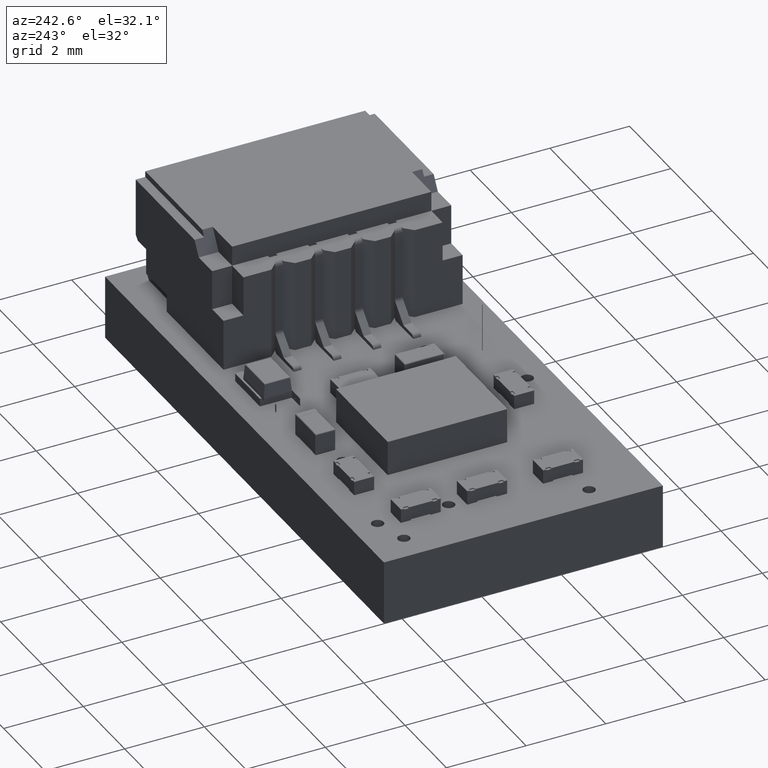
[diagram: clean part render]
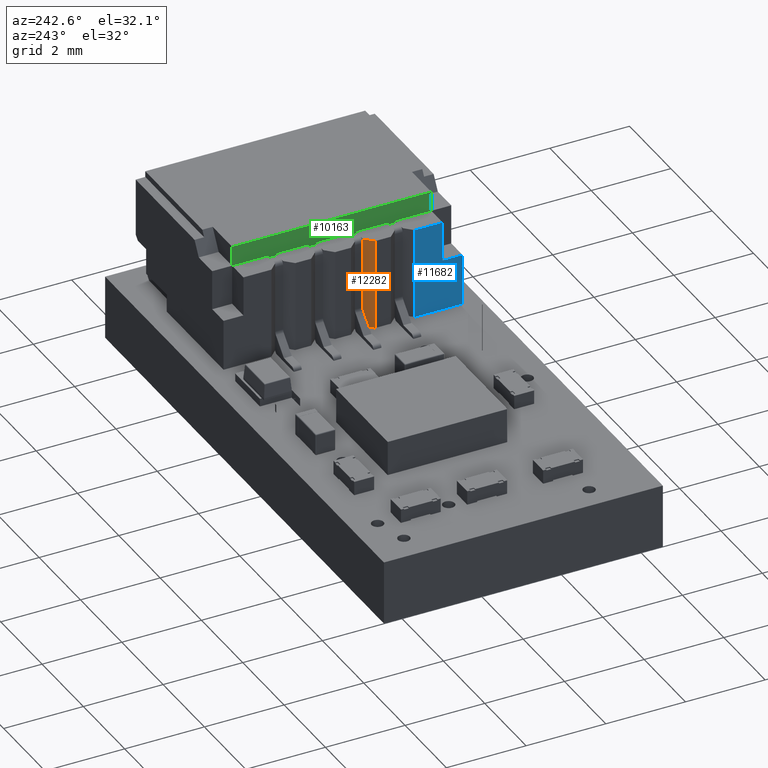
[diagram: same view with three faces highlighted in distinct colors, each labeled with its STEP entity id]
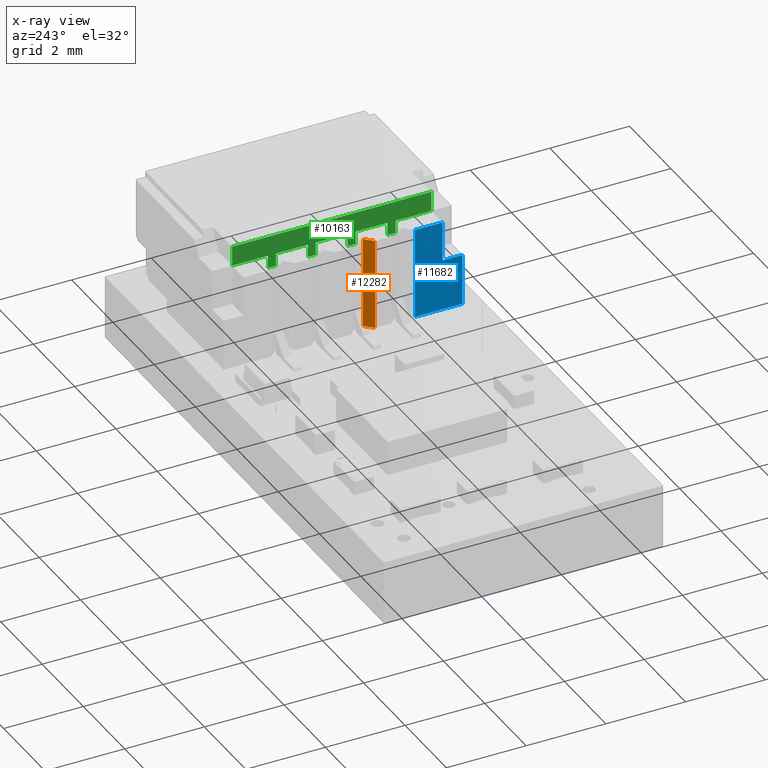
[diagram: x-ray of the same camera — body ghosted, the three highlighted faces saturated]
A machine part, auxiliary view with three faces highlighted in distinct colors.
The next image is the same camera in x-ray (body ghosted, the three faces saturated) — at least one of them is partly hidden behind the body in this view.
Their STEP definitions:

[orange] entity #12282 — the highlighted planar face has unit normal (0.7071, -0.7071, -0).
#11149 = VERTEX_POINT('',#11150);
#11150 = CARTESIAN_POINT('',(-0.8,0.47,-0.355));
#11156 = EDGE_CURVE('',#11149,#11157,#11159,.T.);
#11157 = VERTEX_POINT('',#11158);
#11158 = CARTESIAN_POINT('',(-0.6,0.47,-0.155));
#11159 = LINE('',#11160,#11161);
#11160 = CARTESIAN_POINT('',(-0.6,0.47,-0.155));
#11161 = VECTOR('',#11162,1.);
#11162 = DIRECTION('',(0.707106781187,9.583083854271E-17,0.707106781187)
  );
#11371 = VERTEX_POINT('',#11372);
#11372 = CARTESIAN_POINT('',(-0.8,2.755,-0.355));
#11378 = EDGE_CURVE('',#11371,#11149,#11379,.T.);
#11379 = LINE('',#11380,#11381);
#11380 = CARTESIAN_POINT('',(-0.8,3.255,-0.355));
#11381 = VECTOR('',#11382,1.);
#11382 = DIRECTION('',(-2.486182800327E-29,-1.,-3.491483361109E-15));
#11447 = VERTEX_POINT('',#11448);
#11448 = CARTESIAN_POINT('',(-0.6,2.755,-0.155));
#11454 = EDGE_CURVE('',#11447,#11371,#11455,.T.);
#11455 = LINE('',#11456,#11457);
#11456 = CARTESIAN_POINT('',(-0.6,2.755,-0.155));
#11457 = VECTOR('',#11458,1.);
#11458 = DIRECTION('',(-0.707106781187,-3.963470586361E-45,
    -0.707106781187));
#12201 = EDGE_CURVE('',#11157,#11447,#12202,.T.);
#12202 = LINE('',#12203,#12204);
#12203 = CARTESIAN_POINT('',(-0.6,5.41179920972E-16,-0.155));
#12204 = VECTOR('',#12205,1.);
#12205 = DIRECTION('',(2.486182800327E-29,1.,3.491483361109E-15));
#12282 = ADVANCED_FACE('',(#12283),#12289,.F.);
#12283 = FACE_BOUND('',#12284,.T.);
#12284 = EDGE_LOOP('',(#12285,#12286,#12287,#12288));
#12285 = ORIENTED_EDGE('',*,*,#11156,.F.);
#12286 = ORIENTED_EDGE('',*,*,#11378,.F.);
#12287 = ORIENTED_EDGE('',*,*,#11454,.F.);
#12288 = ORIENTED_EDGE('',*,*,#12201,.F.);
#12289 = PLANE('',#12290);
#12290 = AXIS2_PLACEMENT_3D('',#12291,#12292,#12293);
#12291 = CARTESIAN_POINT('',(-0.6,5.41179920972E-16,-0.155));
#12292 = DIRECTION('',(-0.707106781187,-2.46885156104E-15,0.707106781187
    ));
#12293 = DIRECTION('',(2.524354896707E-29,1.,3.491483361109E-15));

[blue] entity #11682 — the highlighted planar face has unit normal (1, 0, -0).
#11093 = VERTEX_POINT('',#11094);
#11094 = CARTESIAN_POINT('',(-3.,0.47,-0.355));
#11100 = EDGE_CURVE('',#11101,#11093,#11103,.T.);
#11101 = VERTEX_POINT('',#11102);
#11102 = CARTESIAN_POINT('',(-1.8,0.47,-0.355));
#11103 = LINE('',#11104,#11105);
#11104 = CARTESIAN_POINT('',(4.,0.47,-0.355));
#11105 = VECTOR('',#11106,1.);
#11106 = DIRECTION('',(-1.,-1.355252715607E-16,7.105427357601E-15));
#11477 = VERTEX_POINT('',#11478);
#11478 = CARTESIAN_POINT('',(-2.5,2.755,-0.355));
#11484 = EDGE_CURVE('',#11477,#11485,#11487,.T.);
#11485 = VERTEX_POINT('',#11486);
#11486 = CARTESIAN_POINT('',(-2.5,1.755,-0.355));
#11487 = LINE('',#11488,#11489);
#11488 = CARTESIAN_POINT('',(-2.5,3.255,-0.355));
#11489 = VECTOR('',#11490,1.);
#11490 = DIRECTION('',(-2.480848139264E-29,-1.,-3.491483361109E-15));
#11633 = VERTEX_POINT('',#11634);
#11634 = CARTESIAN_POINT('',(-3.,1.755,-0.355));
#11640 = EDGE_CURVE('',#11633,#11093,#11641,.T.);
#11641 = LINE('',#11642,#11643);
#11642 = CARTESIAN_POINT('',(-3.,3.255,-0.355));
#11643 = VECTOR('',#11644,1.);
#11644 = DIRECTION('',(-2.480848139264E-29,-1.,-3.491483361109E-15));
#11682 = ADVANCED_FACE('',(#11683),#11708,.F.);
#11683 = FACE_BOUND('',#11684,.T.);
#11684 = EDGE_LOOP('',(#11685,#11693,#11699,#11700,#11701,#11707));
#11685 = ORIENTED_EDGE('',*,*,#11686,.T.);
#11686 = EDGE_CURVE('',#11477,#11687,#11689,.T.);
#11687 = VERTEX_POINT('',#11688);
#11688 = CARTESIAN_POINT('',(-1.8,2.755,-0.355));
#11689 = LINE('',#11690,#11691);
#11690 = CARTESIAN_POINT('',(-3.,2.755,-0.355));
#11691 = VECTOR('',#11692,1.);
#11692 = DIRECTION('',(1.,5.605193857299E-45,-6.982966722219E-15));
#11693 = ORIENTED_EDGE('',*,*,#11694,.T.);
#11694 = EDGE_CURVE('',#11687,#11101,#11695,.T.);
#11695 = LINE('',#11696,#11697);
#11696 = CARTESIAN_POINT('',(-1.8,3.255,-0.355));
#11697 = VECTOR('',#11698,1.);
#11698 = DIRECTION('',(-2.486182800327E-29,-1.,-3.491483361109E-15));
#11699 = ORIENTED_EDGE('',*,*,#11100,.T.);
#11700 = ORIENTED_EDGE('',*,*,#11640,.F.);
#11701 = ORIENTED_EDGE('',*,*,#11702,.F.);
#11702 = EDGE_CURVE('',#11485,#11633,#11703,.T.);
#11703 = LINE('',#11704,#11705);
#11704 = CARTESIAN_POINT('',(4.,1.755,-0.355));
#11705 = VECTOR('',#11706,1.);
#11706 = DIRECTION('',(-1.,-0.,7.105427357601E-15));
#11707 = ORIENTED_EDGE('',*,*,#11484,.F.);
#11708 = PLANE('',#11709);
#11709 = AXIS2_PLACEMENT_3D('',#11710,#11711,#11712);
#11710 = CARTESIAN_POINT('',(4.,3.255,-0.355));
#11711 = DIRECTION('',(7.105427357601E-15,-3.491483361109E-15,1.));
#11712 = DIRECTION('',(1.,0.,-7.105427357601E-15));

[green] entity #10163 — the highlighted planar face has unit normal (1, 0, -0).
#10163 = ADVANCED_FACE('',(#10164),#10326,.F.);
#10164 = FACE_BOUND('',#10165,.T.);
#10165 = EDGE_LOOP('',(#10166,#10176,#10184,#10192,#10200,#10208,#10216,
    #10224,#10232,#10240,#10248,#10256,#10264,#10272,#10280,#10288,
    #10296,#10304,#10312,#10320));
#10166 = ORIENTED_EDGE('',*,*,#10167,.T.);
#10167 = EDGE_CURVE('',#10168,#10170,#10172,.T.);
#10168 = VERTEX_POINT('',#10169);
#10169 = CARTESIAN_POINT('',(-2.5,3.255,0.195));
#10170 = VERTEX_POINT('',#10171);
#10171 = CARTESIAN_POINT('',(2.5,3.255,0.195));
#10172 = LINE('',#10173,#10174);
#10173 = CARTESIAN_POINT('',(-3.,3.255,0.195));
#10174 = VECTOR('',#10175,1.);
#10175 = DIRECTION('',(1.,0.,-6.982966722219E-15));
#10176 = ORIENTED_EDGE('',*,*,#10177,.T.);
#10177 = EDGE_CURVE('',#10170,#10178,#10180,.T.);
#10178 = VERTEX_POINT('',#10179);
#10179 = CARTESIAN_POINT('',(2.5,2.755,0.195));
#10180 = LINE('',#10181,#10182);
#10181 = CARTESIAN_POINT('',(2.5,3.255,0.195));
#10182 = VECTOR('',#10183,1.);
#10183 = DIRECTION('',(0.,-1.,0.));
#10184 = ORIENTED_EDGE('',*,*,#10185,.F.);
#10185 = EDGE_CURVE('',#10186,#10178,#10188,.T.);
#10186 = VERTEX_POINT('',#10187);
#10187 = CARTESIAN_POINT('',(1.6,2.755,0.195));
#10188 = LINE('',#10189,#10190);
#10189 = CARTESIAN_POINT('',(-4.,2.755,0.195));
#10190 = VECTOR('',#10191,1.);
#10191 = DIRECTION('',(1.,5.605193857299E-45,-6.982966722219E-15));
#10192 = ORIENTED_EDGE('',*,*,#10193,.T.);
#10193 = EDGE_CURVE('',#10186,#10194,#10196,.T.);
#10194 = VERTEX_POINT('',#10195);
#10195 = CARTESIAN_POINT('',(1.6,2.435,0.195));
#10196 = LINE('',#10197,#10198);
#10197 = CARTESIAN_POINT('',(1.6,2.755,0.195));
#10198 = VECTOR('',#10199,1.);
#10199 = DIRECTION('',(0.,-1.,1.186216818912E-17));
#10200 = ORIENTED_EDGE('',*,*,#10201,.F.);
#10201 = EDGE_CURVE('',#10202,#10194,#10204,.T.);
#10202 = VERTEX_POINT('',#10203);
#10203 = CARTESIAN_POINT('',(1.4,2.435,0.195));
#10204 = LINE('',#10205,#10206);
#10205 = CARTESIAN_POINT('',(1.4,2.435,0.195));
#10206 = VECTOR('',#10207,1.);
#10207 = DIRECTION('',(1.,5.605193857299E-45,-6.982966722219E-15));
#10208 = ORIENTED_EDGE('',*,*,#10209,.F.);
#10209 = EDGE_CURVE('',#10210,#10202,#10212,.T.);
#10210 = VERTEX_POINT('',#10211);
#10211 = CARTESIAN_POINT('',(1.4,2.755,0.195));
#10212 = LINE('',#10213,#10214);
#10213 = CARTESIAN_POINT('',(1.4,2.755,0.195));
#10214 = VECTOR('',#10215,1.);
#10215 = DIRECTION('',(0.,-1.,1.186216818912E-17));
#10216 = ORIENTED_EDGE('',*,*,#10217,.F.);
#10217 = EDGE_CURVE('',#10218,#10210,#10220,.T.);
#10218 = VERTEX_POINT('',#10219);
#10219 = CARTESIAN_POINT('',(0.6,2.755,0.195));
#10220 = LINE('',#10221,#10222);
#10221 = CARTESIAN_POINT('',(-4.,2.755,0.195));
#10222 = VECTOR('',#10223,1.);
#10223 = DIRECTION('',(1.,5.605193857299E-45,-6.982966722219E-15));
#10224 = ORIENTED_EDGE('',*,*,#10225,.T.);
#10225 = EDGE_CURVE('',#10218,#10226,#10228,.T.);
#10226 = VERTEX_POINT('',#10227);
#10227 = CARTESIAN_POINT('',(0.6,2.435,0.195));
#10228 = LINE('',#10229,#10230);
#10229 = CARTESIAN_POINT('',(0.6,2.755,0.195));
#10230 = VECTOR('',#10231,1.);
#10231 = DIRECTION('',(0.,-1.,1.186216818912E-17));
#10232 = ORIENTED_EDGE('',*,*,#10233,.F.);
#10233 = EDGE_CURVE('',#10234,#10226,#10236,.T.);
#10234 = VERTEX_POINT('',#10235);
#10235 = CARTESIAN_POINT('',(0.4,2.435,0.195));
#10236 = LINE('',#10237,#10238);
#10237 = CARTESIAN_POINT('',(0.4,2.435,0.195));
#10238 = VECTOR('',#10239,1.);
#10239 = DIRECTION('',(1.,5.605193857299E-45,-6.982966722219E-15));
#10240 = ORIENTED_EDGE('',*,*,#10241,.F.);
#10241 = EDGE_CURVE('',#10242,#10234,#10244,.T.);
#10242 = VERTEX_POINT('',#10243);
#10243 = CARTESIAN_POINT('',(0.4,2.755,0.195));
#10244 = LINE('',#10245,#10246);
#10245 = CARTESIAN_POINT('',(0.4,2.755,0.195));
#10246 = VECTOR('',#10247,1.);
#10247 = DIRECTION('',(0.,-1.,1.186216818912E-17));
#10248 = ORIENTED_EDGE('',*,*,#10249,.F.);
#10249 = EDGE_CURVE('',#10250,#10242,#10252,.T.);
#10250 = VERTEX_POINT('',#10251);
#10251 = CARTESIAN_POINT('',(-0.4,2.755,0.195));
#10252 = LINE('',#10253,#10254);
#10253 = CARTESIAN_POINT('',(-3.,2.755,0.195));
#10254 = VECTOR('',#10255,1.);
#10255 = DIRECTION('',(1.,5.605193857299E-45,-6.982966722219E-15));
#10256 = ORIENTED_EDGE('',*,*,#10257,.T.);
#10257 = EDGE_CURVE('',#10250,#10258,#10260,.T.);
#10258 = VERTEX_POINT('',#10259);
#10259 = CARTESIAN_POINT('',(-0.4,2.435,0.195));
#10260 = LINE('',#10261,#10262);
#10261 = CARTESIAN_POINT('',(-0.4,2.755,0.195));
#10262 = VECTOR('',#10263,1.);
#10263 = DIRECTION('',(0.,-1.,1.186216818912E-17));
#10264 = ORIENTED_EDGE('',*,*,#10265,.F.);
#10265 = EDGE_CURVE('',#10266,#10258,#10268,.T.);
#10266 = VERTEX_POINT('',#10267);
#10267 = CARTESIAN_POINT('',(-0.6,2.435,0.195));
#10268 = LINE('',#10269,#10270);
#10269 = CARTESIAN_POINT('',(-0.6,2.435,0.195));
#10270 = VECTOR('',#10271,1.);
#10271 = DIRECTION('',(1.,5.605193857299E-45,-6.982966722219E-15));
#10272 = ORIENTED_EDGE('',*,*,#10273,.F.);
#10273 = EDGE_CURVE('',#10274,#10266,#10276,.T.);
#10274 = VERTEX_POINT('',#10275);
#10275 = CARTESIAN_POINT('',(-0.6,2.755,0.195));
#10276 = LINE('',#10277,#10278);
#10277 = CARTESIAN_POINT('',(-0.6,2.755,0.195));
#10278 = VECTOR('',#10279,1.);
#10279 = DIRECTION('',(0.,-1.,1.186216818912E-17));
#10280 = ORIENTED_EDGE('',*,*,#10281,.F.);
#10281 = EDGE_CURVE('',#10282,#10274,#10284,.T.);
#10282 = VERTEX_POINT('',#10283);
#10283 = CARTESIAN_POINT('',(-1.4,2.755,0.195));
#10284 = LINE('',#10285,#10286);
#10285 = CARTESIAN_POINT('',(-3.,2.755,0.195));
#10286 = VECTOR('',#10287,1.);
#10287 = DIRECTION('',(1.,5.605193857299E-45,-6.982966722219E-15));
#10288 = ORIENTED_EDGE('',*,*,#10289,.T.);
#10289 = EDGE_CURVE('',#10282,#10290,#10292,.T.);
#10290 = VERTEX_POINT('',#10291);
#10291 = CARTESIAN_POINT('',(-1.4,2.435,0.195));
#10292 = LINE('',#10293,#10294);
#10293 = CARTESIAN_POINT('',(-1.4,2.755,0.195));
#10294 = VECTOR('',#10295,1.);
#10295 = DIRECTION('',(0.,-1.,1.186216818912E-17));
#10296 = ORIENTED_EDGE('',*,*,#10297,.F.);
#10297 = EDGE_CURVE('',#10298,#10290,#10300,.T.);
#10298 = VERTEX_POINT('',#10299);
#10299 = CARTESIAN_POINT('',(-1.6,2.435,0.195));
#10300 = LINE('',#10301,#10302);
#10301 = CARTESIAN_POINT('',(-1.6,2.435,0.195));
#10302 = VECTOR('',#10303,1.);
#10303 = DIRECTION('',(1.,5.605193857299E-45,-6.982966722219E-15));
#10304 = ORIENTED_EDGE('',*,*,#10305,.F.);
#10305 = EDGE_CURVE('',#10306,#10298,#10308,.T.);
#10306 = VERTEX_POINT('',#10307);
#10307 = CARTESIAN_POINT('',(-1.6,2.755,0.195));
#10308 = LINE('',#10309,#10310);
#10309 = CARTESIAN_POINT('',(-1.6,2.755,0.195));
#10310 = VECTOR('',#10311,1.);
#10311 = DIRECTION('',(0.,-1.,1.186216818912E-17));
#10312 = ORIENTED_EDGE('',*,*,#10313,.F.);
#10313 = EDGE_CURVE('',#10314,#10306,#10316,.T.);
#10314 = VERTEX_POINT('',#10315);
#10315 = CARTESIAN_POINT('',(-2.5,2.755,0.195));
#10316 = LINE('',#10317,#10318);
#10317 = CARTESIAN_POINT('',(-3.,2.755,0.195));
#10318 = VECTOR('',#10319,1.);
#10319 = DIRECTION('',(1.,5.605193857299E-45,-6.982966722219E-15));
#10320 = ORIENTED_EDGE('',*,*,#10321,.F.);
#10321 = EDGE_CURVE('',#10168,#10314,#10322,.T.);
#10322 = LINE('',#10323,#10324);
#10323 = CARTESIAN_POINT('',(-2.5,2.755,0.195));
#10324 = VECTOR('',#10325,1.);
#10325 = DIRECTION('',(5.605193857299E-45,-1.,-3.914088217711E-59));
#10326 = PLANE('',#10327);
#10327 = AXIS2_PLACEMENT_3D('',#10328,#10329,#10330);
#10328 = CARTESIAN_POINT('',(-3.,3.255,0.195));
#10329 = DIRECTION('',(6.982966722219E-15,0.,1.));
#10330 = DIRECTION('',(1.,0.,-6.982966722219E-15));